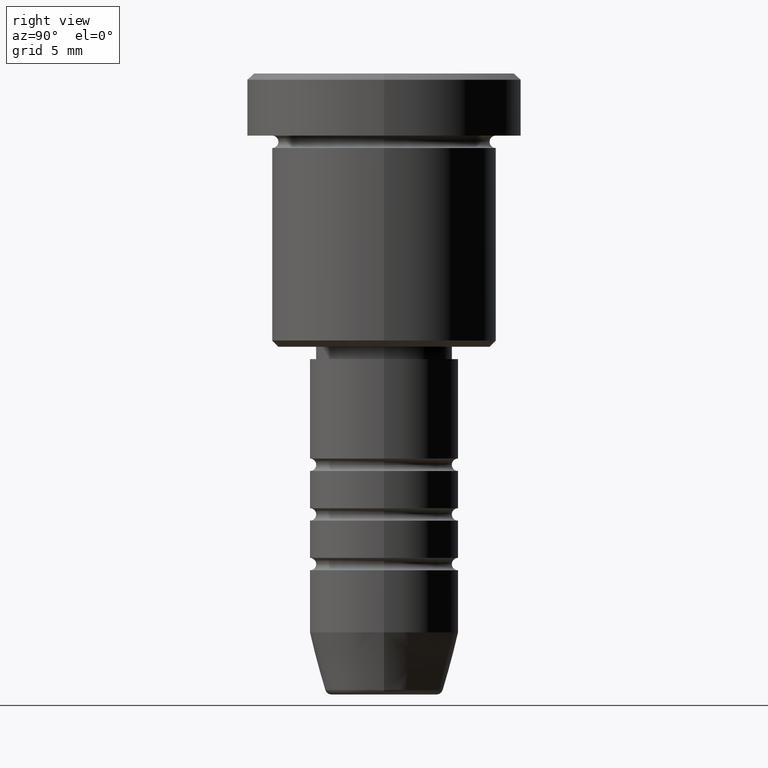
[diagram: clean part render]
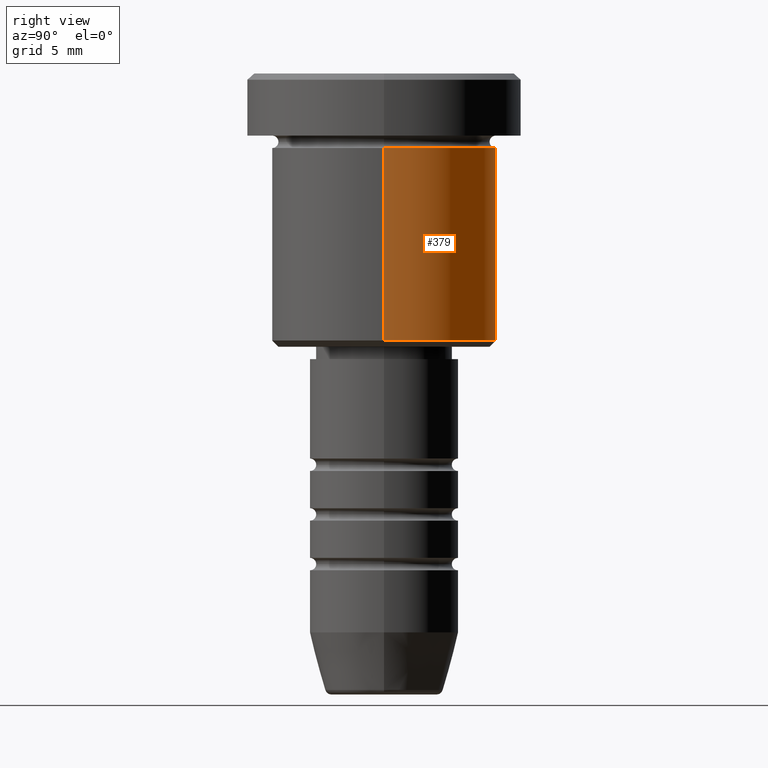
[diagram: same view with one face highlighted and labeled with its STEP entity id]
A machine part, right view. The second image highlights one B-rep face of the part: STEP entity #379.
In plain terms, the highlighted cylindrical surface (partial cylindrical patch) has radius 9 mm, axis along (-0, -0, 1).
Its self-contained STEP definition (entity closure, byte-faithful):
#4 = CIRCLE ( 'NONE', #442, 9.000000000000000000 ) ;
#21 = EDGE_CURVE ( 'NONE', #458, #426, #63, .T. ) ;
#63 = LINE ( 'NONE', #270, #985 ) ;
#115 = EDGE_CURVE ( 'NONE', #426, #343, #284, .T. ) ;
#162 = DIRECTION ( 'NONE',  ( 1.000000000000000000, 0.000000000000000000, 0.000000000000000000 ) ) ;
#163 = CARTESIAN_POINT ( 'NONE',  ( -9.000000000000000000, 1.102182119232617714E-15, 0.000000000000000000 ) ) ;
#229 = VERTEX_POINT ( 'NONE', #937 ) ;
#256 = CARTESIAN_POINT ( 'NONE',  ( 0.000000000000000000, 0.000000000000000000, -6.000000000000000000 ) ) ;
#270 = CARTESIAN_POINT ( 'NONE',  ( 9.000000000000000000, 0.000000000000000000, 0.000000000000000000 ) ) ;
#284 = CIRCLE ( 'NONE', #941, 9.000000000000000000 ) ;
#297 = VECTOR ( 'NONE', #992, 1000.000000000000000 ) ;
#343 = VERTEX_POINT ( 'NONE', #953 ) ;
#360 = ORIENTED_EDGE ( 'NONE', *, *, #457, .T. ) ;
#379 = ADVANCED_FACE ( 'NONE', ( #441 ), #1178, .T. ) ;
#426 = VERTEX_POINT ( 'NONE', #516 ) ;
#437 = CARTESIAN_POINT ( 'NONE',  ( 9.000000000000000000, 0.000000000000000000, -21.50000000000000355 ) ) ;
#441 = FACE_OUTER_BOUND ( 'NONE', #538, .T. ) ;
#442 = AXIS2_PLACEMENT_3D ( 'NONE', #1081, #611, #892 ) ;
#457 = EDGE_CURVE ( 'NONE', #458, #229, #4, .T. ) ;
#458 = VERTEX_POINT ( 'NONE', #437 ) ;
#516 = CARTESIAN_POINT ( 'NONE',  ( 9.000000000000000000, 0.000000000000000000, -6.000000000000000000 ) ) ;
#538 = EDGE_LOOP ( 'NONE', ( #360, #1010, #655, #1001 ) ) ;
#611 = DIRECTION ( 'NONE',  ( -0.000000000000000000, -0.000000000000000000, 1.000000000000000000 ) ) ;
#655 = ORIENTED_EDGE ( 'NONE', *, *, #115, .F. ) ;
#694 = CARTESIAN_POINT ( 'NONE',  ( 0.000000000000000000, 0.000000000000000000, 0.000000000000000000 ) ) ;
#700 = DIRECTION ( 'NONE',  ( 1.000000000000000000, 0.000000000000000000, 0.000000000000000000 ) ) ;
#803 = DIRECTION ( 'NONE',  ( -0.000000000000000000, -0.000000000000000000, 1.000000000000000000 ) ) ;
#859 = AXIS2_PLACEMENT_3D ( 'NONE', #694, #803, #700 ) ;
#892 = DIRECTION ( 'NONE',  ( -1.000000000000000000, 0.000000000000000000, 0.000000000000000000 ) ) ;
#937 = CARTESIAN_POINT ( 'NONE',  ( -9.000000000000000000, 1.102182119232617714E-15, -21.50000000000000355 ) ) ;
#941 = AXIS2_PLACEMENT_3D ( 'NONE', #256, #979, #162 ) ;
#953 = CARTESIAN_POINT ( 'NONE',  ( -9.000000000000000000, 1.102182119232617714E-15, -6.000000000000000000 ) ) ;
#979 = DIRECTION ( 'NONE',  ( -0.000000000000000000, -0.000000000000000000, 1.000000000000000000 ) ) ;
#985 = VECTOR ( 'NONE', #1074, 1000.000000000000000 ) ;
#992 = DIRECTION ( 'NONE',  ( -0.000000000000000000, -0.000000000000000000, 1.000000000000000000 ) ) ;
#1001 = ORIENTED_EDGE ( 'NONE', *, *, #21, .F. ) ;
#1010 = ORIENTED_EDGE ( 'NONE', *, *, #1100, .T. ) ;
#1074 = DIRECTION ( 'NONE',  ( -0.000000000000000000, -0.000000000000000000, 1.000000000000000000 ) ) ;
#1081 = CARTESIAN_POINT ( 'NONE',  ( 0.000000000000000000, 0.000000000000000000, -21.50000000000000355 ) ) ;
#1100 = EDGE_CURVE ( 'NONE', #229, #343, #1182, .T. ) ;
#1178 = CYLINDRICAL_SURFACE ( 'NONE', #859, 9.000000000000000000 ) ;
#1182 = LINE ( 'NONE', #163, #297 ) ;